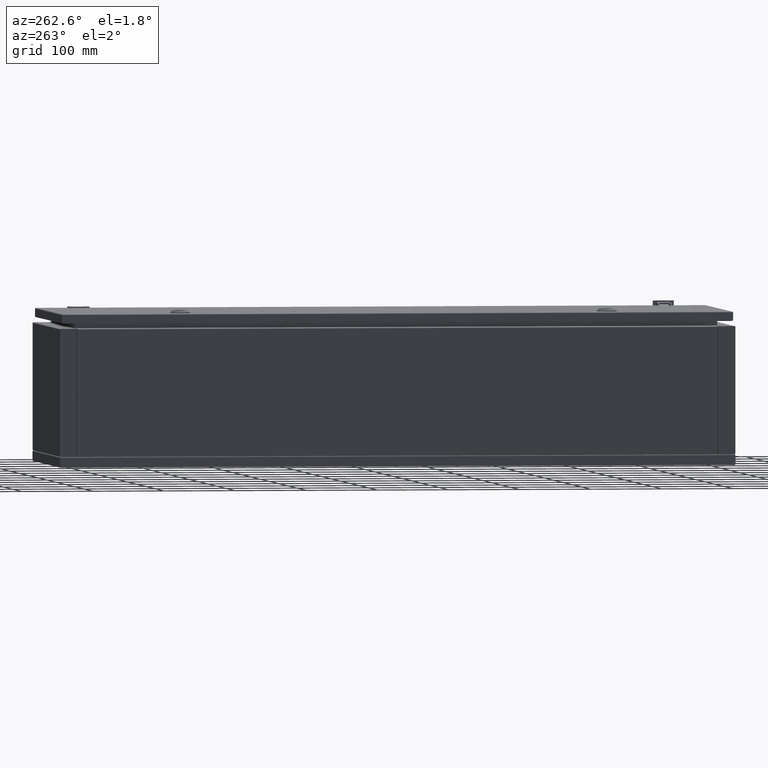
[diagram: clean part render]
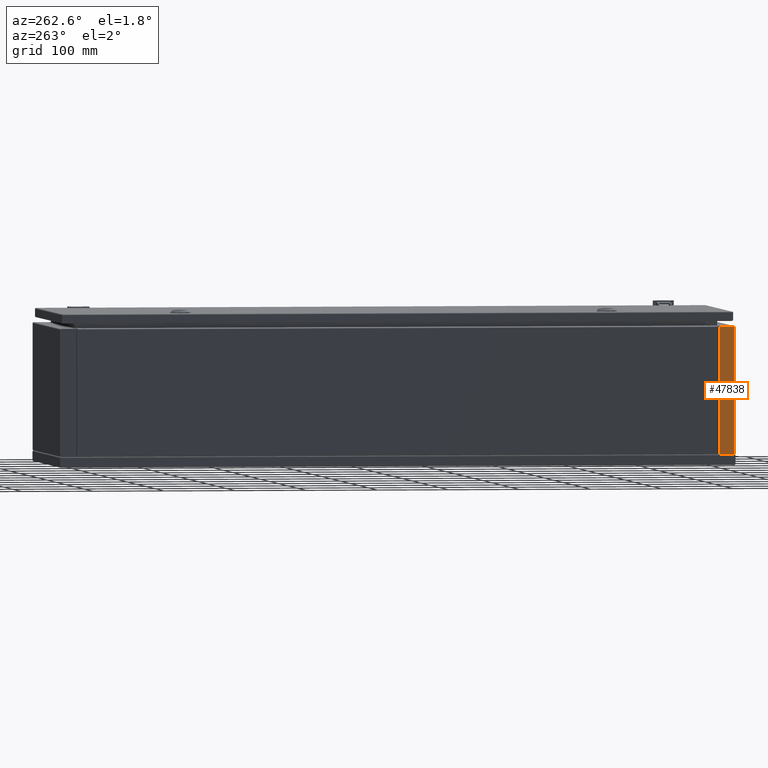
[diagram: same view with one face highlighted and labeled with its STEP entity id]
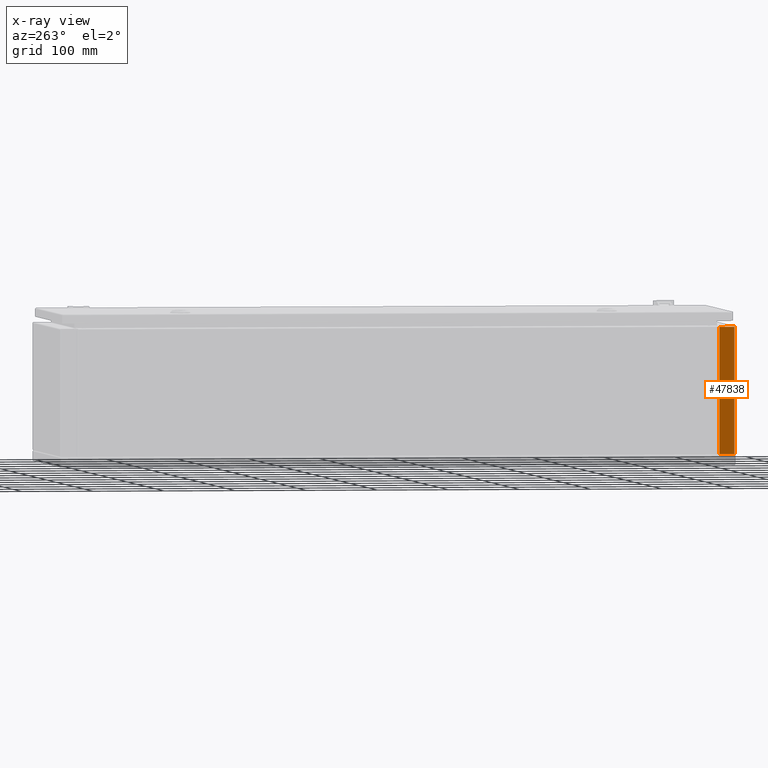
[diagram: x-ray of the same camera — body ghosted, the highlighted face saturated]
A machine part, auxiliary view. The second image highlights one B-rep face of the part: STEP entity #47838.
The next image is the same camera in x-ray: the body ghosted, the highlighted face saturated — about 0% of this face is hidden behind the body in this view.
In plain terms, the highlighted planar face has unit normal (1, 0, 0).
Its self-contained STEP definition (entity closure, byte-faithful):
#1630 = CARTESIAN_POINT ( 'NONE',  ( -149.9999999999981800, -473.5000000000000000, 14.00000000000000000 ) ) ;
#1705 = VECTOR ( 'NONE', #36750, 1000.000000000000000 ) ;
#2729 = ORIENTED_EDGE ( 'NONE', *, *, #61475, .F. ) ;
#3689 = CARTESIAN_POINT ( 'NONE',  ( -149.9999999999981800, -473.5000000000000000, 15.50000000000000000 ) ) ;
#6084 = LINE ( 'NONE', #26108, #73116 ) ;
#7440 = EDGE_CURVE ( 'NONE', #74319, #13686, #39998, .T. ) ;
#8419 = AXIS2_PLACEMENT_3D ( 'NONE', #24043, #45778, #51121 ) ;
#10461 = ORIENTED_EDGE ( 'NONE', *, *, #7440, .T. ) ;
#11865 = DIRECTION ( 'NONE',  ( 3.296965874913640200E-015, 1.000000000000000000, 9.366917085571558800E-017 ) ) ;
#13686 = VERTEX_POINT ( 'NONE', #17241 ) ;
#17241 = CARTESIAN_POINT ( 'NONE',  ( -149.9999999999979800, -452.6000000000000200, 14.00000000000000000 ) ) ;
#18778 = DIRECTION ( 'NONE',  ( -6.460819690009950100E-016, 1.000000000000000000, 6.986097267370700700E-015 ) ) ;
#24043 = CARTESIAN_POINT ( 'NONE',  ( -149.9999999999981800, -474.0000000000000000, 15.50000000000000000 ) ) ;
#24693 = CARTESIAN_POINT ( 'NONE',  ( -149.9999999999981800, -473.5000000000000000, 191.8999999999999800 ) ) ;
#25392 = LINE ( 'NONE', #79745, #82835 ) ;
#26108 = CARTESIAN_POINT ( 'NONE',  ( -149.9999999999981800, -473.5000000000000000, 14.00000000000000000 ) ) ;
#27181 = ORIENTED_EDGE ( 'NONE', *, *, #86310, .F. ) ;
#30116 = DIRECTION ( 'NONE',  ( 4.023572721128125300E-025, 3.491481336412970400E-015, -1.000000000000000000 ) ) ;
#36750 = DIRECTION ( 'NONE',  ( 4.023572721128125300E-025, 3.491481336412970400E-015, -1.000000000000000000 ) ) ;
#37108 = CARTESIAN_POINT ( 'NONE',  ( -149.9999999999979800, -452.6000000000000200, 191.8999999999999800 ) ) ;
#38917 = PLANE ( 'NONE',  #8419 ) ;
#39998 = LINE ( 'NONE', #57878, #1705 ) ;
#45778 = DIRECTION ( 'NONE',  ( 1.000000000000000000, 1.605278258695185100E-015, 4.023629233993280200E-025 ) ) ;
#47838 = ADVANCED_FACE ( 'NONE', ( #60322 ), #38917, .F. ) ;
#51121 = DIRECTION ( 'NONE',  ( -1.605278258695185100E-015, 1.000000000000000000, 3.491481336412970400E-015 ) ) ;
#53810 = EDGE_CURVE ( 'NONE', #75188, #74319, #25392, .T. ) ;
#57878 = CARTESIAN_POINT ( 'NONE',  ( -149.9999999999979800, -452.6000000000000200, 191.8999999999999800 ) ) ;
#60322 = FACE_OUTER_BOUND ( 'NONE', #60633, .T. ) ;
#60633 = EDGE_LOOP ( 'NONE', ( #10461, #27181, #2729, #68896 ) ) ;
#61316 = VERTEX_POINT ( 'NONE', #1630 ) ;
#61475 = EDGE_CURVE ( 'NONE', #75188, #61316, #75658, .T. ) ;
#68228 = VECTOR ( 'NONE', #30116, 1000.000000000000000 ) ;
#68896 = ORIENTED_EDGE ( 'NONE', *, *, #53810, .T. ) ;
#73116 = VECTOR ( 'NONE', #11865, 1000.000000000000000 ) ;
#74319 = VERTEX_POINT ( 'NONE', #37108 ) ;
#75188 = VERTEX_POINT ( 'NONE', #24693 ) ;
#75658 = LINE ( 'NONE', #3689, #68228 ) ;
#79745 = CARTESIAN_POINT ( 'NONE',  ( -149.9999999999981800, -473.5000000000000000, 191.8999999999999800 ) ) ;
#82835 = VECTOR ( 'NONE', #18778, 1000.000000000000000 ) ;
#86310 = EDGE_CURVE ( 'NONE', #61316, #13686, #6084, .T. ) ;